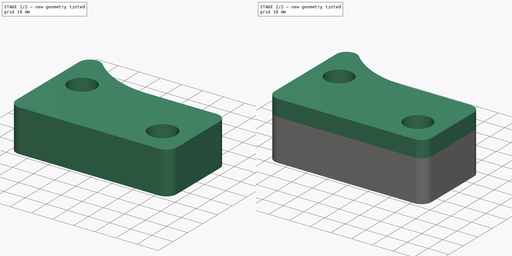
[diagram: build sequence overview — one tinted view per stage of 2, left to right]
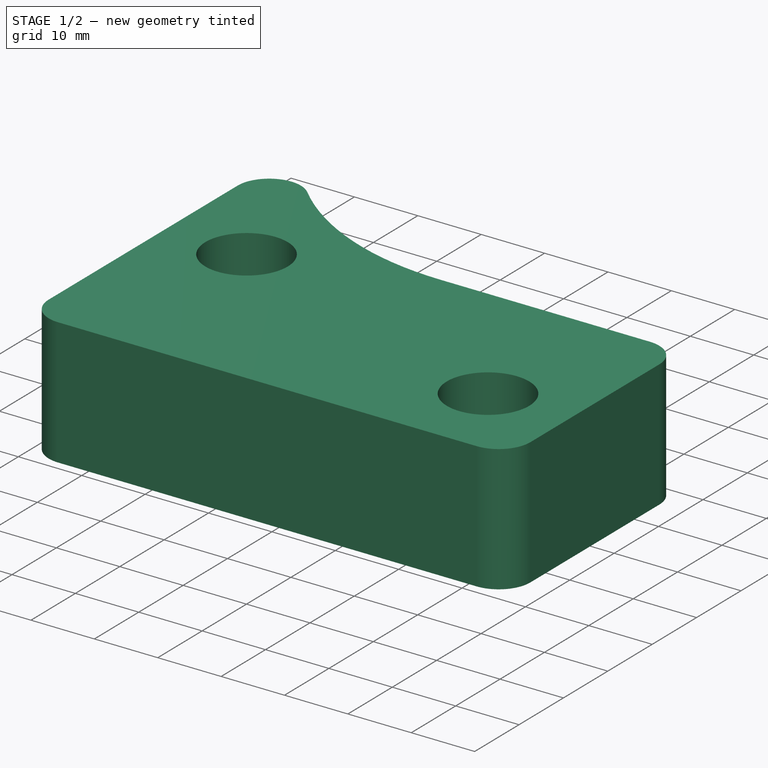
[diagram: stage 1 of 2 — iso view after this stage's code; geometry added in this stage tinted green]
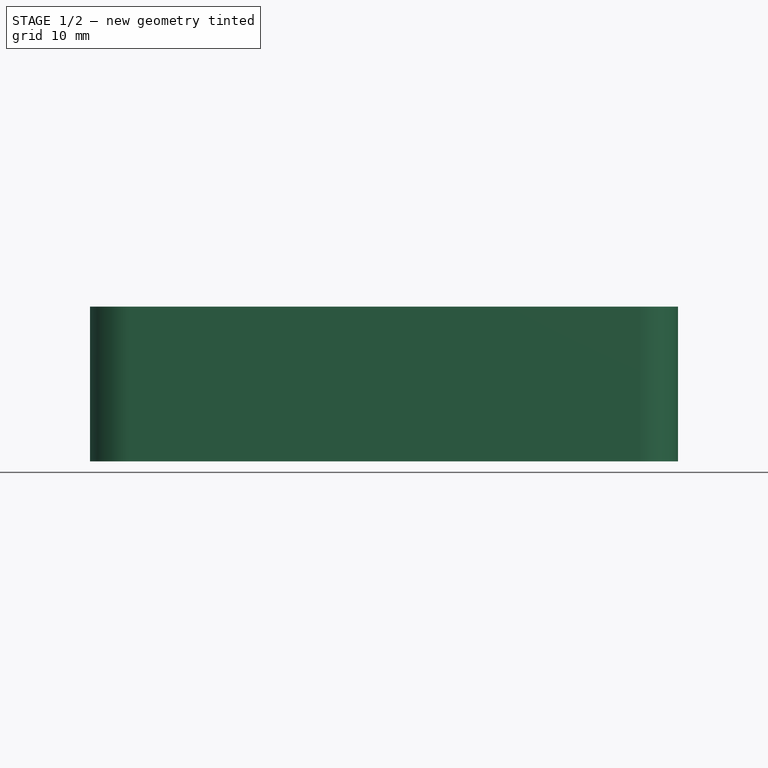
[diagram: stage 1 of 2 — front view after this stage's code; geometry added in this stage tinted green]
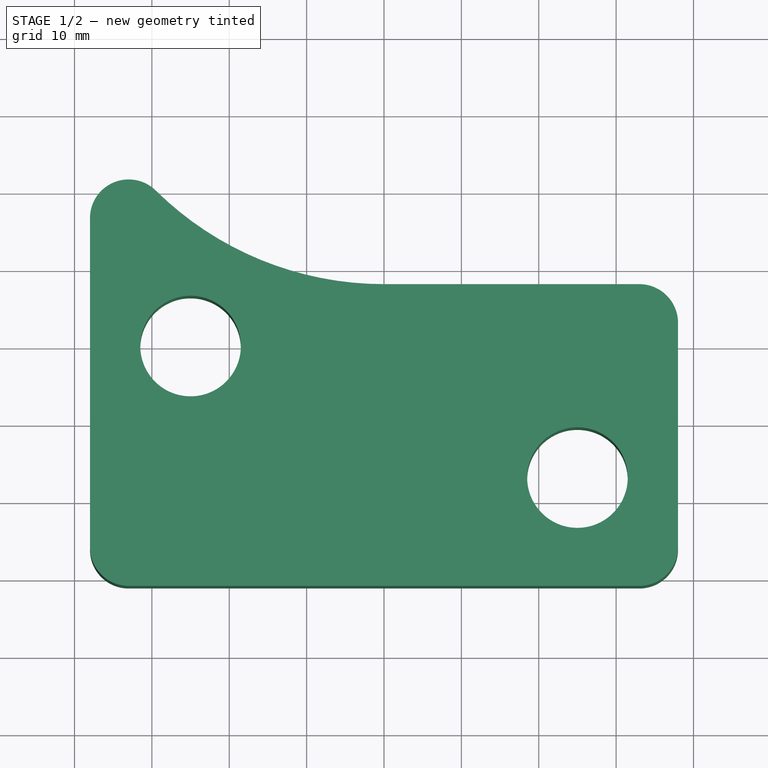
[diagram: stage 1 of 2 — top view after this stage's code; geometry added in this stage tinted green]
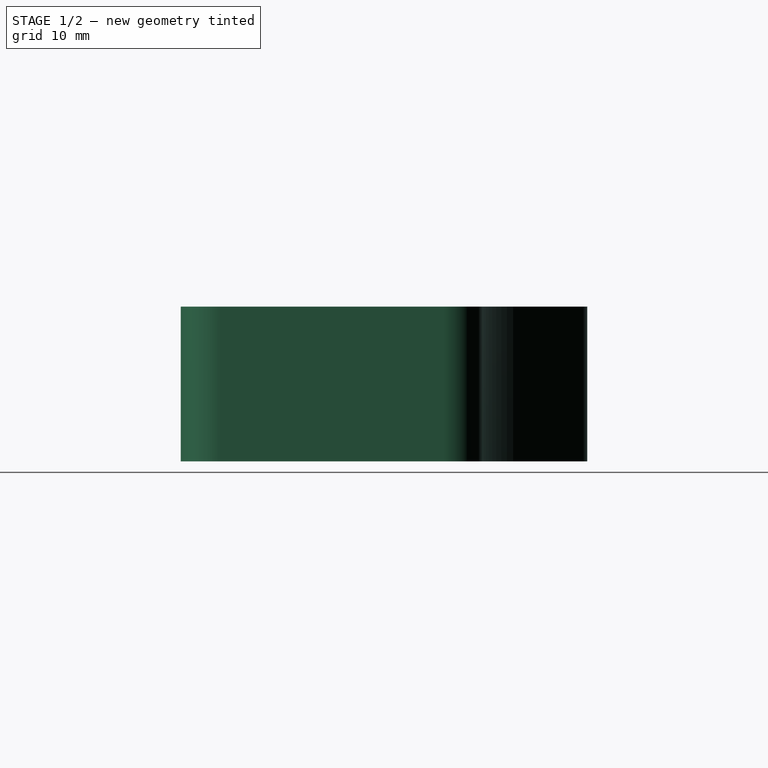
[diagram: stage 1 of 2 — right view after this stage's code; geometry added in this stage tinted green]
FCSTD DOCUMENT  (FreeCAD 0.19R24366 (Git))
Label: Stack actuator location plate spacer 8-12-8
License: All rights reserved
LicenseURL: http://en.wikipedia.org/wiki/All_rights_reserved
objects: PartDesign::Pad×3, Sketcher::SketchObject×1, PartDesign::Body×1
note: 8 computed .brp shape members not serialized (recipe doc carries the construction recipe); baked Part::Feature solids carry a one-line shape summary decoded from their .brp

FEATURE [Sketcher::SketchObject] Sketch
  FullyConstrained = true
  MapMode = 5
  Support = -> [XY_Plane]
  sketch-geometry (17):
    g0: Circle CenterX=0 CenterY=0 CenterZ=0 NormalX=0 NormalY=0 NormalZ=1 AngleXU=0 Radius=15
    g1: Circle CenterX=0 CenterY=0 CenterZ=0 NormalX=0 NormalY=0 NormalZ=1 AngleXU=0 Radius=32
    g2: Circle CenterX=0 CenterY=0 CenterZ=0 NormalX=0 NormalY=0 NormalZ=1 AngleXU=0 Radius=40
    g3: ArcOfCircle CenterX=0 CenterY=0 CenterZ=0 NormalX=0 NormalY=0 NormalZ=1 AngleXU=0 Radius=42 StartAngle=3.93401 EndAngle=4.71239
    g4: LineSegment StartX=-7.7e-15 StartY=-42 StartZ=0 EndX=33 EndY=-42 EndZ=0
    g5: GeomPoint X=0 Y=-100 Z=0
    g6: LineSegment StartX=-38 StartY=-33.4664 StartZ=0 EndX=-38 EndY=-76 EndZ=0
    g7: LineSegment StartX=38 StartY=-47 StartZ=0 EndX=38 EndY=-76 EndZ=0
    g8: LineSegment StartX=-33 StartY=-81 StartZ=0 EndX=33 EndY=-81 EndZ=0
    g9: ArcOfCircle CenterX=-33 CenterY=-33.4664 CenterZ=0 NormalX=0 NormalY=0 NormalZ=1 AngleXU=0 Radius=5 StartAngle=0.792415 EndAngle=3.14159
    g10: ArcOfCircle CenterX=33 CenterY=-47 CenterZ=0 NormalX=0 NormalY=0 NormalZ=1 AngleXU=0 Radius=5 StartAngle=4e-16 EndAngle=1.5708
    g11: ArcOfCircle CenterX=33 CenterY=-76 CenterZ=0 NormalX=0 NormalY=0 NormalZ=1 AngleXU=0 Radius=5 StartAngle=4.71239 EndAngle=6.28319
    g12: ArcOfCircle CenterX=-33 CenterY=-76 CenterZ=0 NormalX=0 NormalY=0 NormalZ=1 AngleXU=0 Radius=5 StartAngle=3.14159 EndAngle=4.71239
    g13: Circle CenterX=-25 CenterY=-50 CenterZ=0 NormalX=0 NormalY=0 NormalZ=1 AngleXU=0 Radius=6.5
    g14: Circle CenterX=-25 CenterY=-50 CenterZ=0 NormalX=0 NormalY=0 NormalZ=1 AngleXU=0 Radius=12
    g15: Circle CenterX=25 CenterY=-67 CenterZ=0 NormalX=0 NormalY=0 NormalZ=1 AngleXU=0 Radius=6.5
    g16: Circle CenterX=25 CenterY=-67 CenterZ=0 NormalX=0 NormalY=0 NormalZ=1 AngleXU=0 Radius=12
  constraints (41):
    c: Coincident(g0,g-1)
    c: Coincident(g1,g0)
    c: Coincident(g2,g0)
    c: Radius(g0) = 15
    c: Radius(g1) = 32
    c: Radius(g2) = 40
    c: Coincident(g3,g0)
    c: PointOnObject(g3,g-2)
    c: Radius(g3) = 42
    c: Coincident(g4,g3)
    c: Horizontal(g4)
    c: PointOnObject(g5,g-2)
    c: DistanceY(g5,g0) = 100
    c: Vertical(g6)
    c: Vertical(g7)
    c: Tangent(g3,g9) = 1.5708
    c: Tangent(g6,g9) = -1.5708
    c: Tangent(g4,g10) = 1.5708
    c: Tangent(g7,g10) = 1.5708
    c: Tangent(g7,g11) = 1.5708
    c: Tangent(g8,g11) = -1.5708
    c: Tangent(g8,g12) = -1.5708
    c: Tangent(g6,g12) = -1.5708
    c: Symmetric(g8,g8,g-2)
    c: Equal(g11,g10)
    c: Equal(g10,g9)
    c: Angle(g3) = 0.778381
    c: Equal(g12,g9)
    c: Radius(g11) = 5
    c: DistanceY(g5,g8) = 19
    c: Coincident(g14,g13)
    c: Coincident(g16,g15)
    c: Equal(g15,g13)
    c: Radius(g15) = 6.5
    c: Radius(g16) = 12
    c: Equal(g14,g16)
    c: DistanceX(g13,g-1) = 25
    c: DistanceX(g3,g15) = 25
    c: DistanceY(g8,g15) = 14
    c: DistanceY(g15,g13) = 17
    c: DistanceX(g6,g7) = 76
FEATURE [PartDesign::Pad] Pad  label="8mm thick plate"
  Direction = (1,1,1)
  Length = 8
  Length2 = 100
  Profile = -> Sketch
  Type = 0
FEATURE [PartDesign::Pad] Pad001
  BaseFeature = -> Pad
  Direction = (1,1,1)
  Length = 12
  Length2 = 100
  Profile = -> Pad [Face13]
  Type = 0
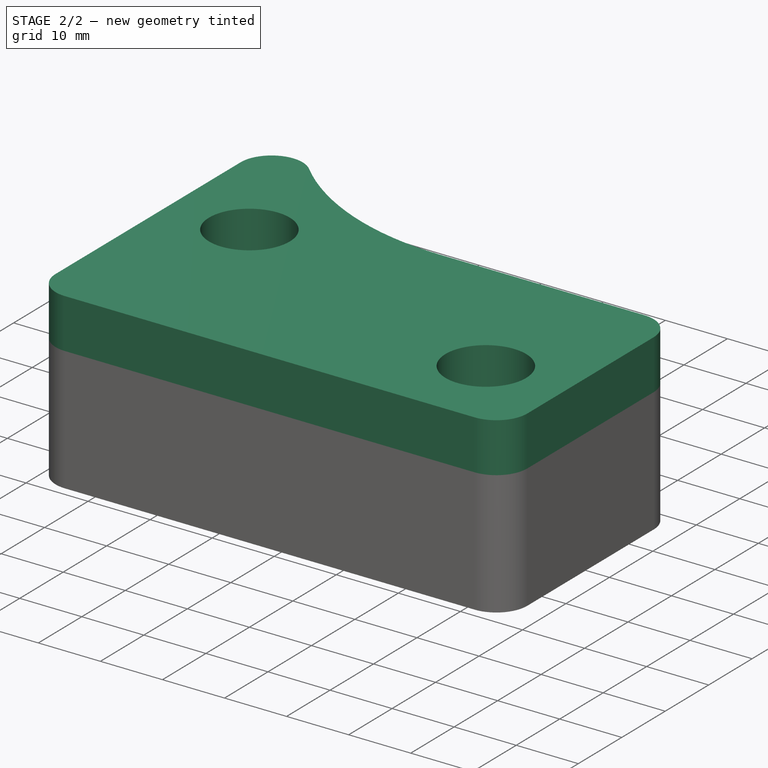
[diagram: stage 2 of 2 — iso view after this stage's code; geometry added in this stage tinted green]
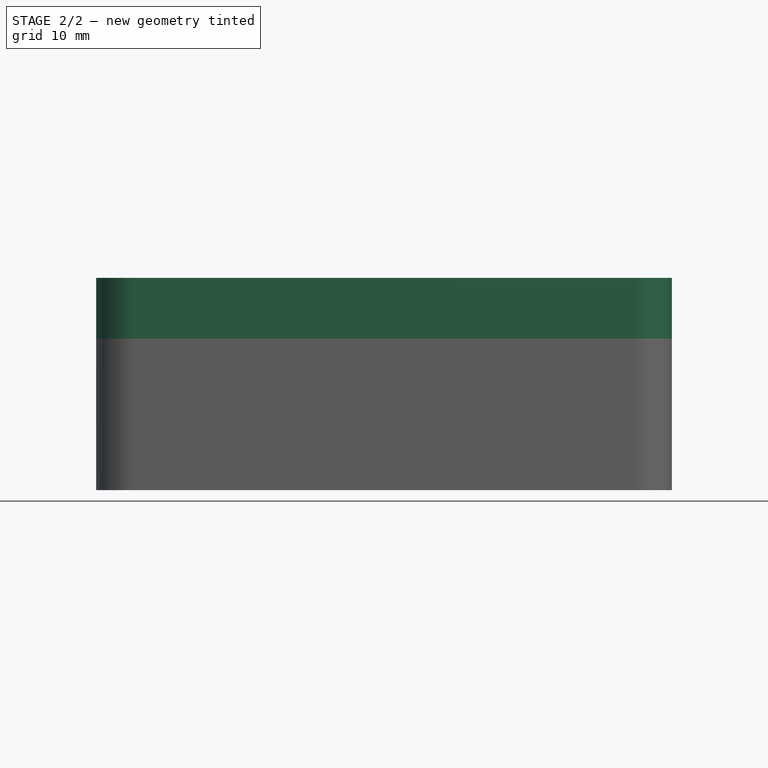
[diagram: stage 2 of 2 — front view after this stage's code; geometry added in this stage tinted green]
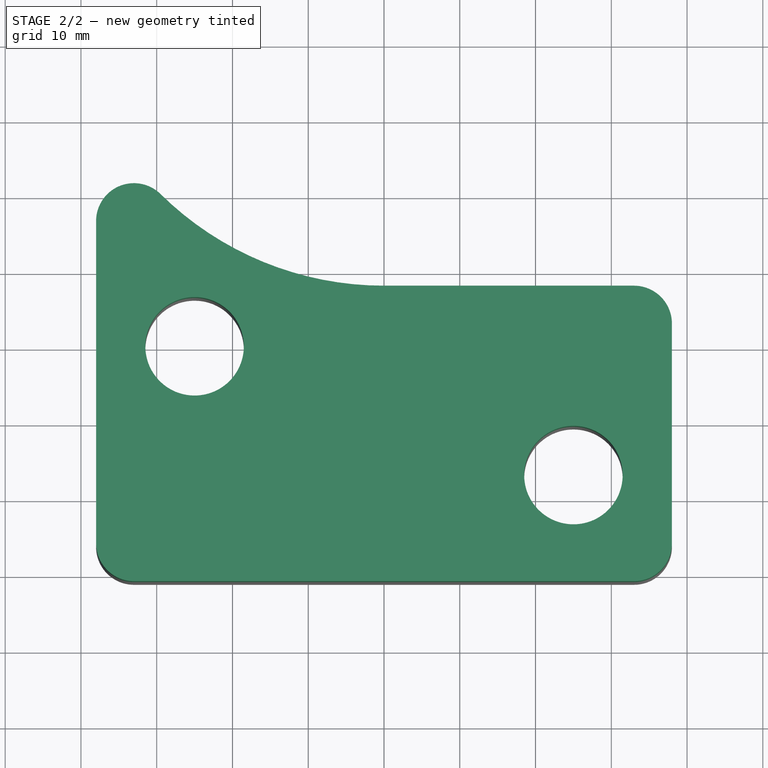
[diagram: stage 2 of 2 — top view after this stage's code; geometry added in this stage tinted green]
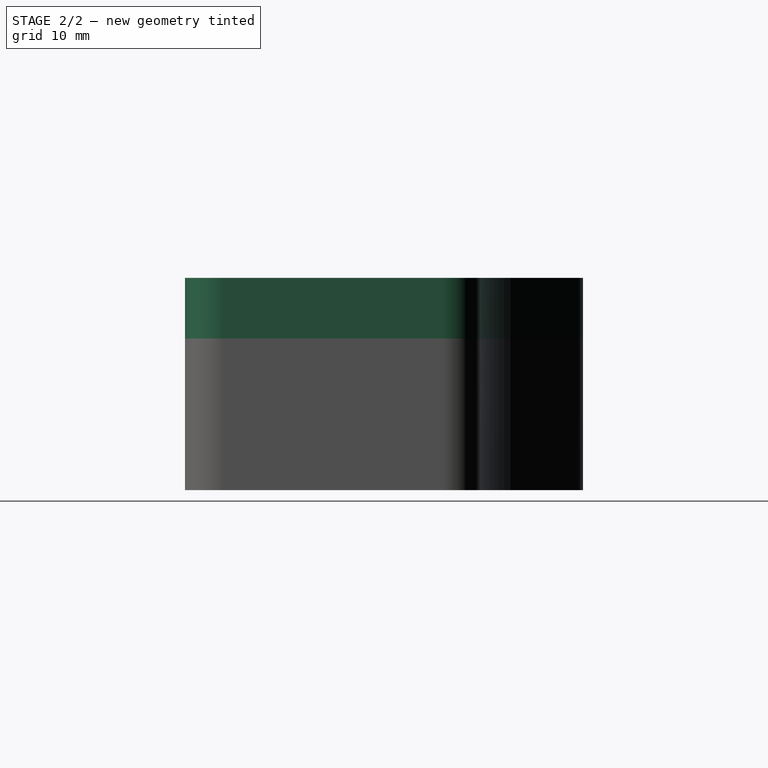
[diagram: stage 2 of 2 — right view after this stage's code; geometry added in this stage tinted green]
FEATURE [PartDesign::Pad] Pad002
  BaseFeature = -> Pad001
  Direction = (1,1,1)
  Length = 8
  Length2 = 100
  Profile = -> Pad001 [Face16]
  Type = 0
FEATURE [PartDesign::Body] Body
  Group = -> [Sketch,Pad,Pad001,Pad002]
  Origin = -> Origin
  Tip = -> Pad002
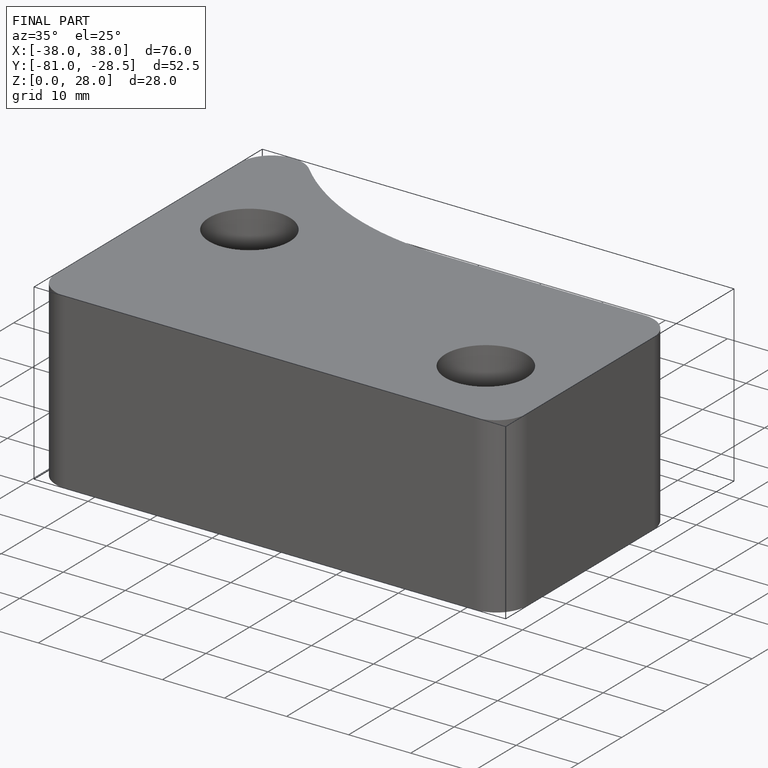
[diagram: finished part — iso view with bounding-box wireframe]
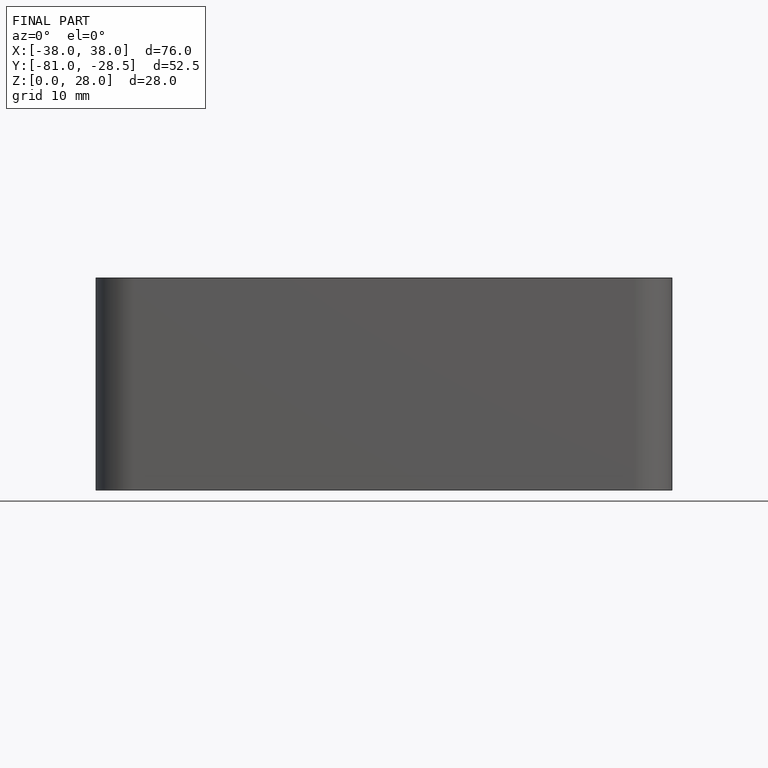
[diagram: finished part — front view with bounding-box wireframe]
